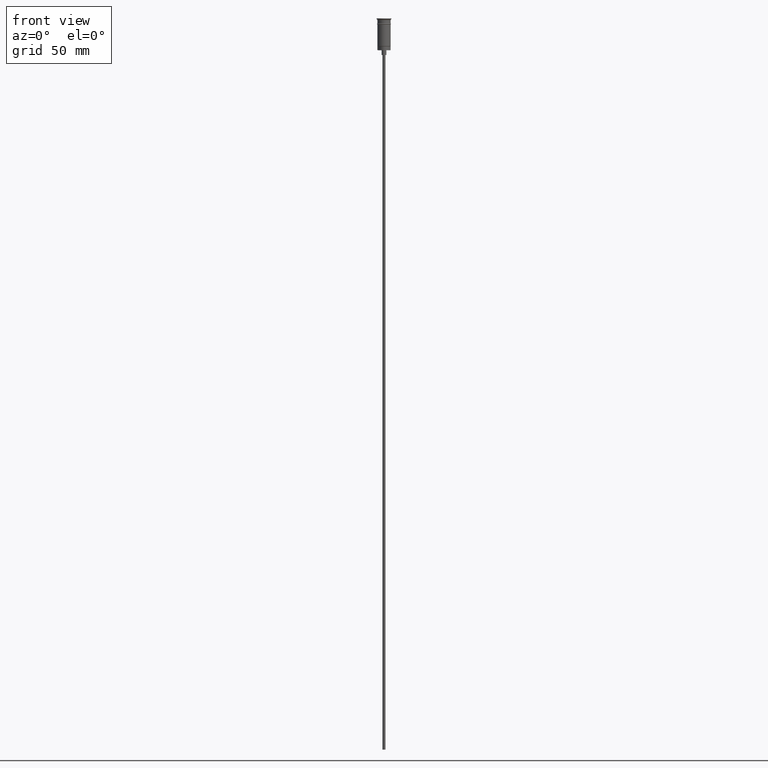
[diagram: clean part render]
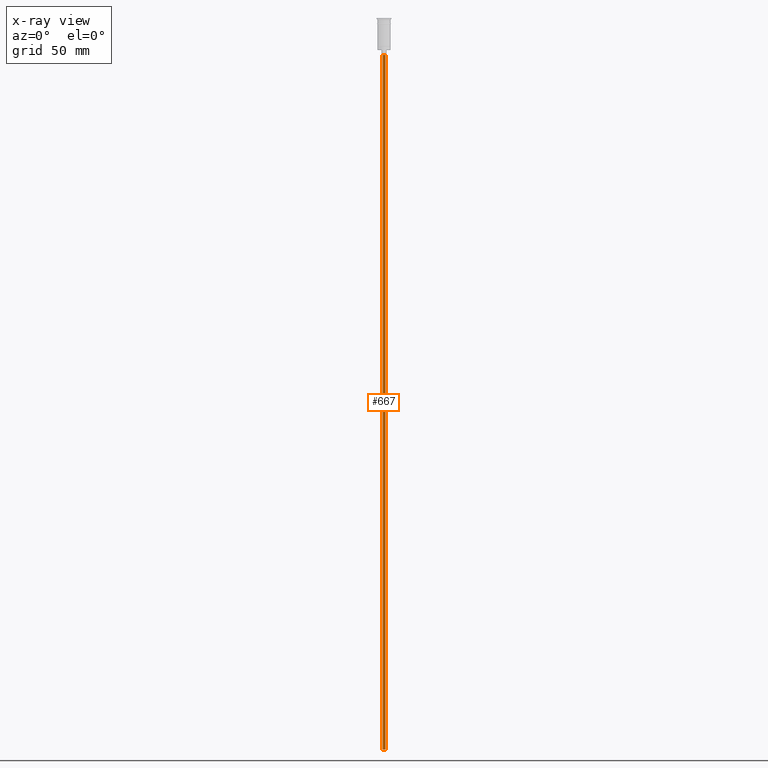
[diagram: x-ray — body ghosted, one internal face saturated and labeled with its STEP entity id]
A machine part, front view, then the same camera in x-ray: the body is ghosted and one INTERNAL B-rep face — a face not visible from any outside direction — is saturated and labeled: STEP entity #667.
In plain terms, the highlighted cylindrical surface (edge-blend (fillet) strip) has radius 1 mm, axis along (-0, -0, 1).
Its self-contained STEP definition (entity closure, byte-faithful):
#70 = CARTESIAN_POINT ( 'NONE',  ( 0.000000000000000000, 0.000000000000000000, -470.5000000000000568 ) ) ;
#94 = EDGE_CURVE ( 'NONE', #773, #848, #777, .T. ) ;
#229 = AXIS2_PLACEMENT_3D ( 'NONE', #1266, #800, #1284 ) ;
#259 = DIRECTION ( 'NONE',  ( -0.000000000000000000, -0.000000000000000000, 1.000000000000000000 ) ) ;
#269 = VECTOR ( 'NONE', #259, 1000.000000000000000 ) ;
#303 = EDGE_CURVE ( 'NONE', #1592, #388, #606, .T. ) ;
#388 = VERTEX_POINT ( 'NONE', #796 ) ;
#437 = DIRECTION ( 'NONE',  ( -0.000000000000000000, -0.000000000000000000, 1.000000000000000000 ) ) ;
#442 = FACE_OUTER_BOUND ( 'NONE', #813, .T. ) ;
#510 = ORIENTED_EDGE ( 'NONE', *, *, #1366, .F. ) ;
#515 = CARTESIAN_POINT ( 'NONE',  ( -0.9999999999999997780, 1.224646799147352961E-16, -470.5000000000000568 ) ) ;
#528 = CIRCLE ( 'NONE', #819, 0.9999999999999997780 ) ;
#537 = ORIENTED_EDGE ( 'NONE', *, *, #1459, .T. ) ;
#606 = LINE ( 'NONE', #719, #269 ) ;
#667 = ADVANCED_FACE ( 'NONE', ( #442 ), #1047, .T. ) ;
#679 = CARTESIAN_POINT ( 'NONE',  ( 0.000000000000000000, 0.000000000000000000, -23.49999999999999645 ) ) ;
#719 = CARTESIAN_POINT ( 'NONE',  ( 0.9999999999999997780, 0.000000000000000000, -470.5000000000000568 ) ) ;
#734 = AXIS2_PLACEMENT_3D ( 'NONE', #70, #437, #922 ) ;
#773 = VERTEX_POINT ( 'NONE', #515 ) ;
#777 = LINE ( 'NONE', #1272, #1569 ) ;
#783 = ORIENTED_EDGE ( 'NONE', *, *, #303, .F. ) ;
#796 = CARTESIAN_POINT ( 'NONE',  ( 0.9999999999999997780, 0.000000000000000000, -23.49999999999999645 ) ) ;
#800 = DIRECTION ( 'NONE',  ( 0.000000000000000000, 0.000000000000000000, -1.000000000000000000 ) ) ;
#813 = EDGE_LOOP ( 'NONE', ( #510, #846, #537, #783 ) ) ;
#819 = AXIS2_PLACEMENT_3D ( 'NONE', #679, #1189, #1178 ) ;
#846 = ORIENTED_EDGE ( 'NONE', *, *, #94, .T. ) ;
#848 = VERTEX_POINT ( 'NONE', #1241 ) ;
#914 = CIRCLE ( 'NONE', #229, 0.9999999999999997780 ) ;
#922 = DIRECTION ( 'NONE',  ( 1.000000000000000000, 0.000000000000000000, 0.000000000000000000 ) ) ;
#923 = DIRECTION ( 'NONE',  ( -0.000000000000000000, -0.000000000000000000, 1.000000000000000000 ) ) ;
#1047 = CYLINDRICAL_SURFACE ( 'NONE', #734, 0.9999999999999997780 ) ;
#1178 = DIRECTION ( 'NONE',  ( -1.000000000000000000, 0.000000000000000000, 0.000000000000000000 ) ) ;
#1189 = DIRECTION ( 'NONE',  ( 0.000000000000000000, 0.000000000000000000, -1.000000000000000000 ) ) ;
#1215 = CARTESIAN_POINT ( 'NONE',  ( 0.9999999999999997780, 0.000000000000000000, -470.5000000000000568 ) ) ;
#1241 = CARTESIAN_POINT ( 'NONE',  ( -0.9999999999999997780, 1.224646799147352961E-16, -23.49999999999999645 ) ) ;
#1266 = CARTESIAN_POINT ( 'NONE',  ( 0.000000000000000000, 0.000000000000000000, -470.5000000000000568 ) ) ;
#1272 = CARTESIAN_POINT ( 'NONE',  ( -0.9999999999999997780, 1.224646799147352961E-16, -470.5000000000000568 ) ) ;
#1284 = DIRECTION ( 'NONE',  ( -1.000000000000000000, 0.000000000000000000, 0.000000000000000000 ) ) ;
#1366 = EDGE_CURVE ( 'NONE', #773, #1592, #914, .T. ) ;
#1459 = EDGE_CURVE ( 'NONE', #848, #388, #528, .T. ) ;
#1569 = VECTOR ( 'NONE', #923, 1000.000000000000000 ) ;
#1592 = VERTEX_POINT ( 'NONE', #1215 ) ;